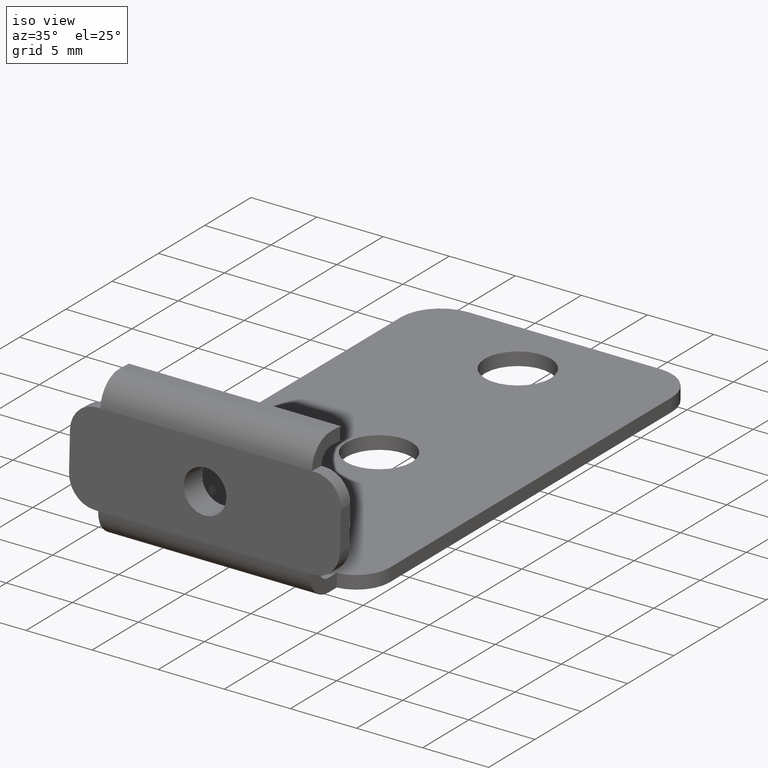
[diagram: clean part render]
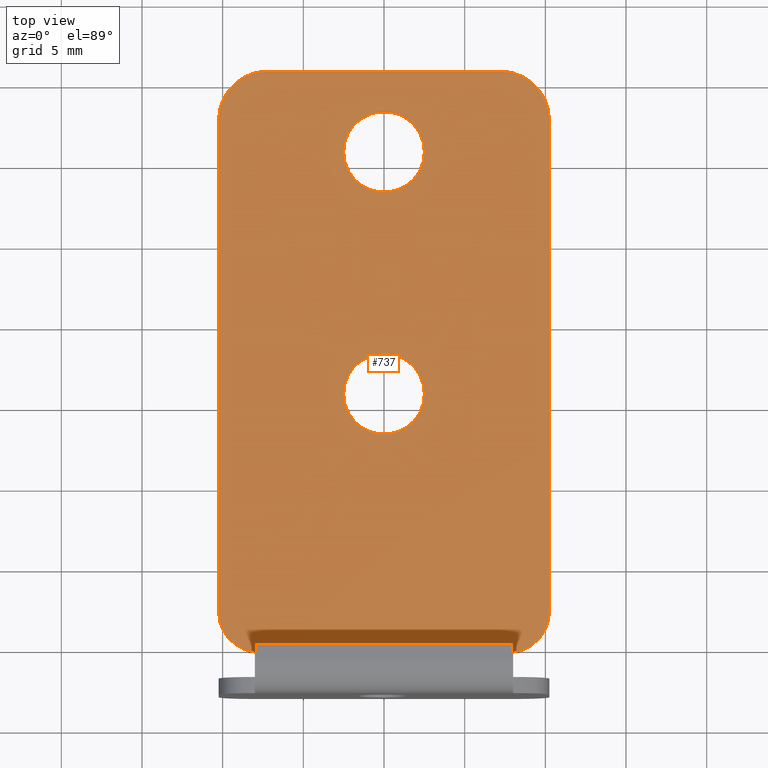
[diagram: tour spotlight — one face highlighted and labeled with its STEP entity id]
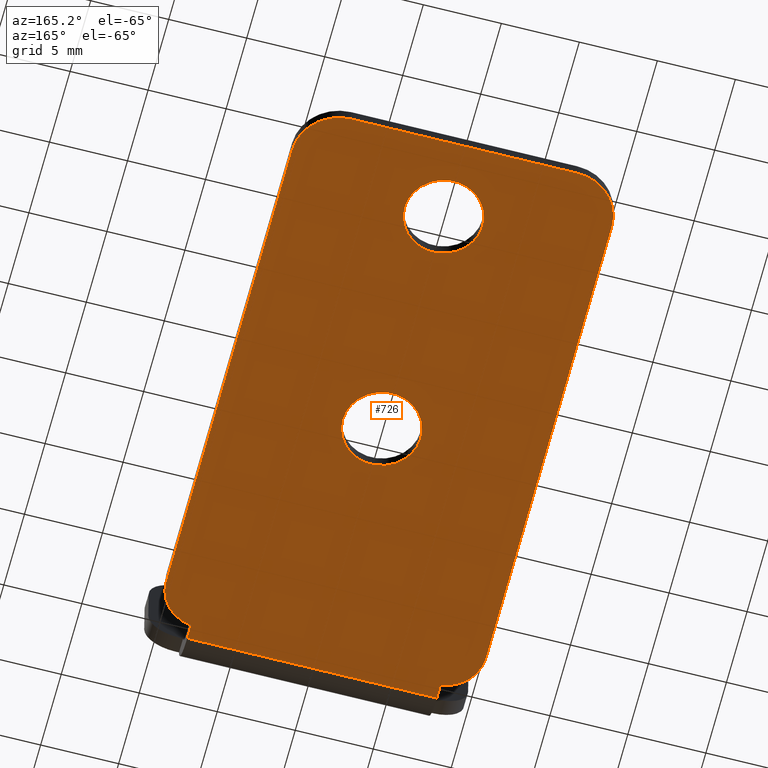
[diagram: tour spotlight — one face highlighted and labeled with its STEP entity id]
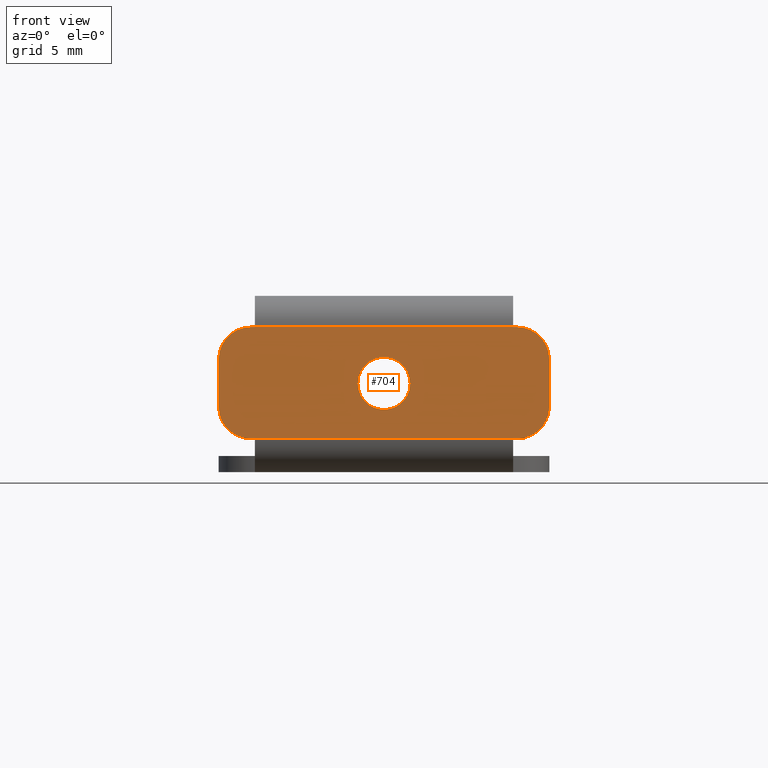
[diagram: tour spotlight — one face highlighted and labeled with its STEP entity id]
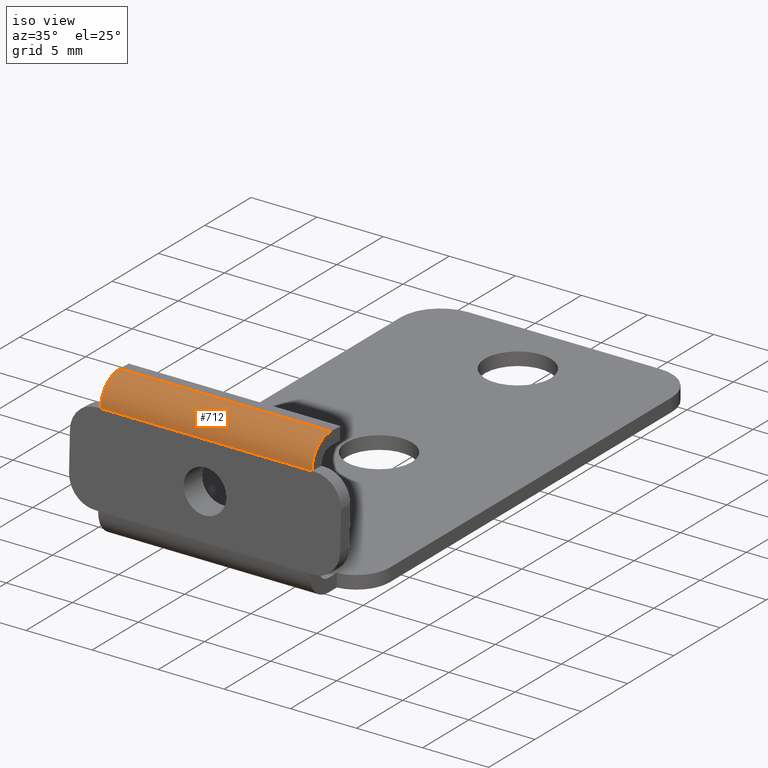
[diagram: tour spotlight — one face highlighted and labeled with its STEP entity id]
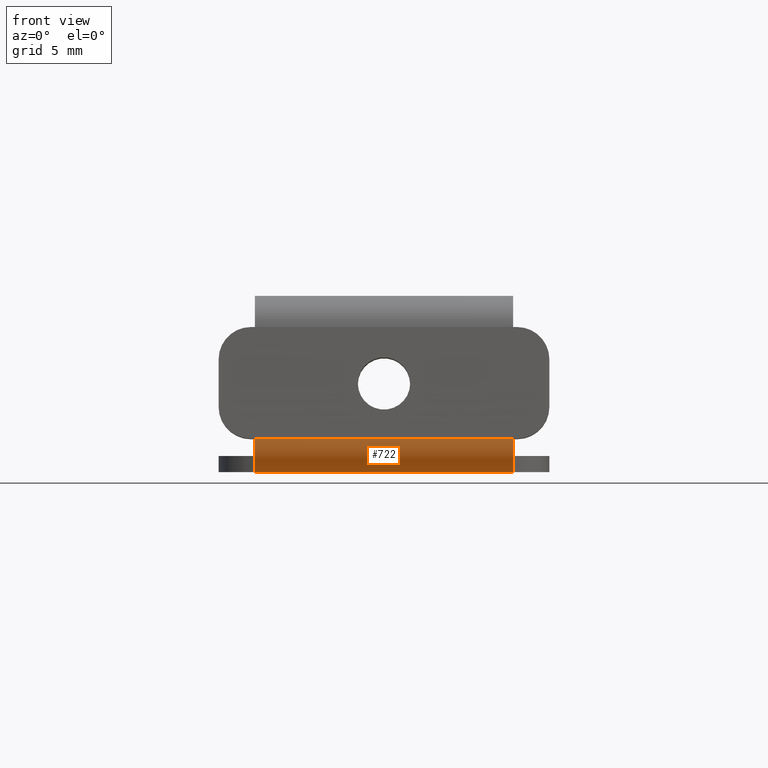
[diagram: tour spotlight — one face highlighted and labeled with its STEP entity id]
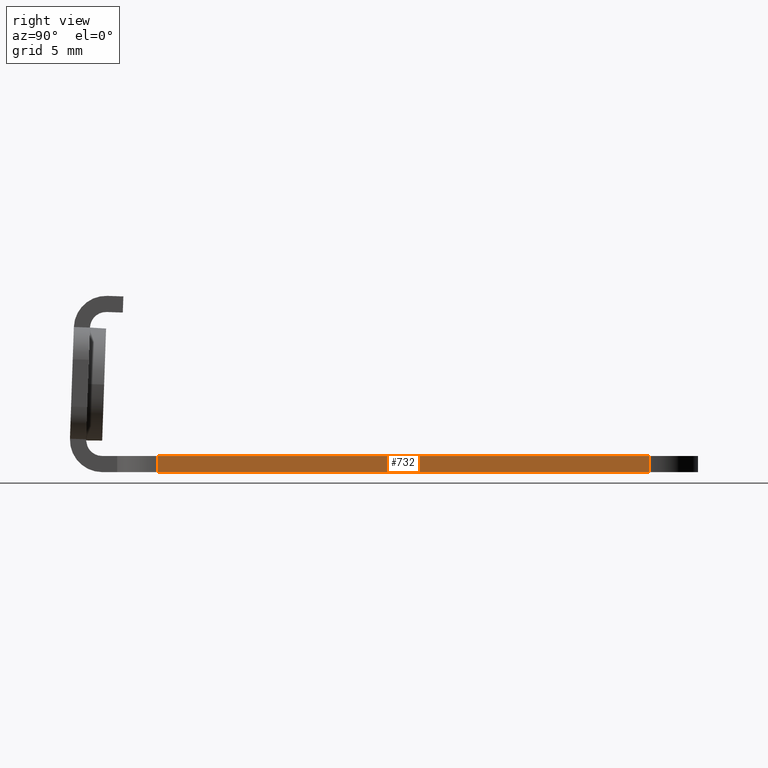
[diagram: tour spotlight — one face highlighted and labeled with its STEP entity id]
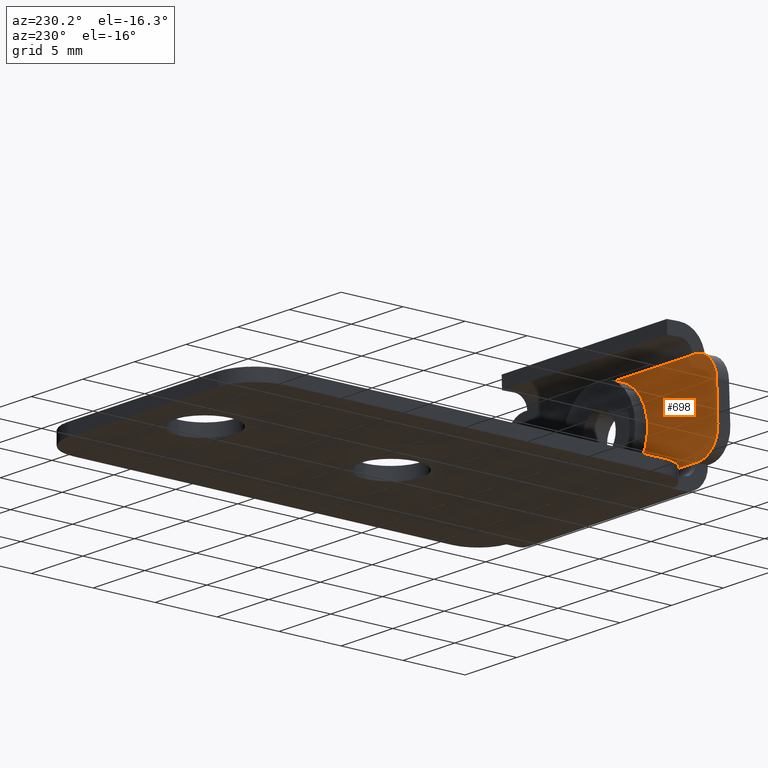
[diagram: tour spotlight — one face highlighted and labeled with its STEP entity id]
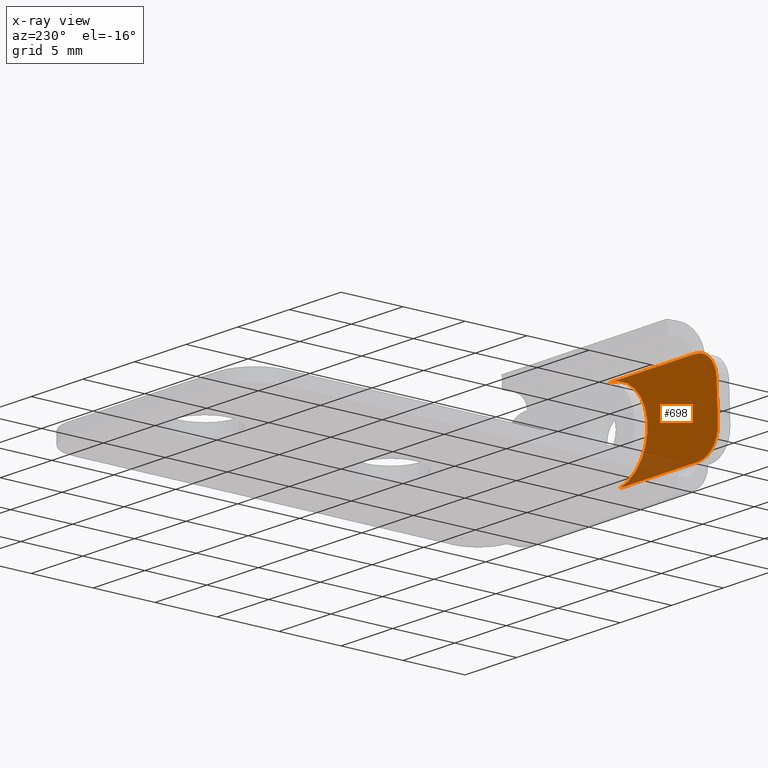
[diagram: x-ray of the same camera — body ghosted, this tour face saturated]
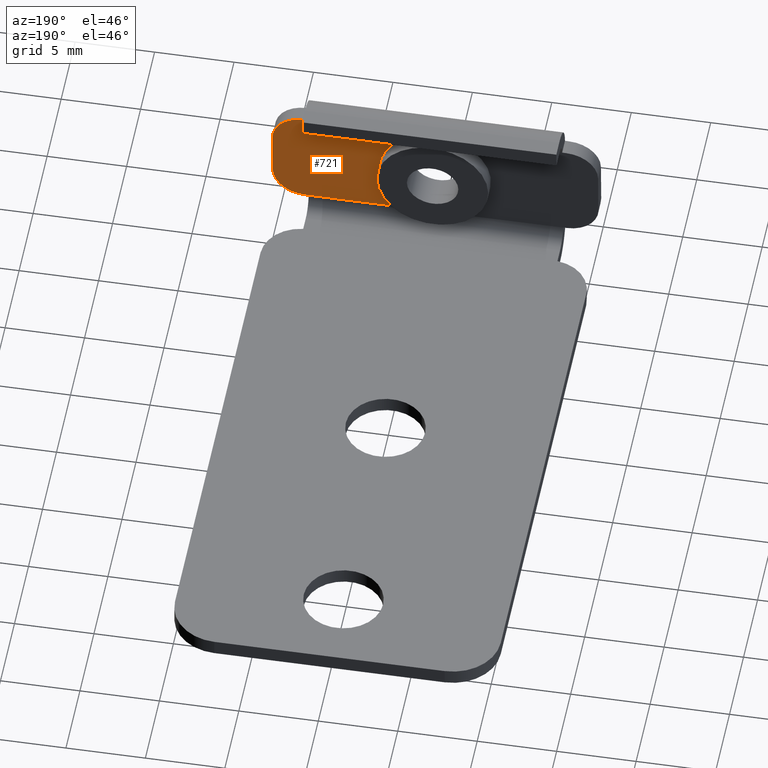
[diagram: tour spotlight — one face highlighted and labeled with its STEP entity id]
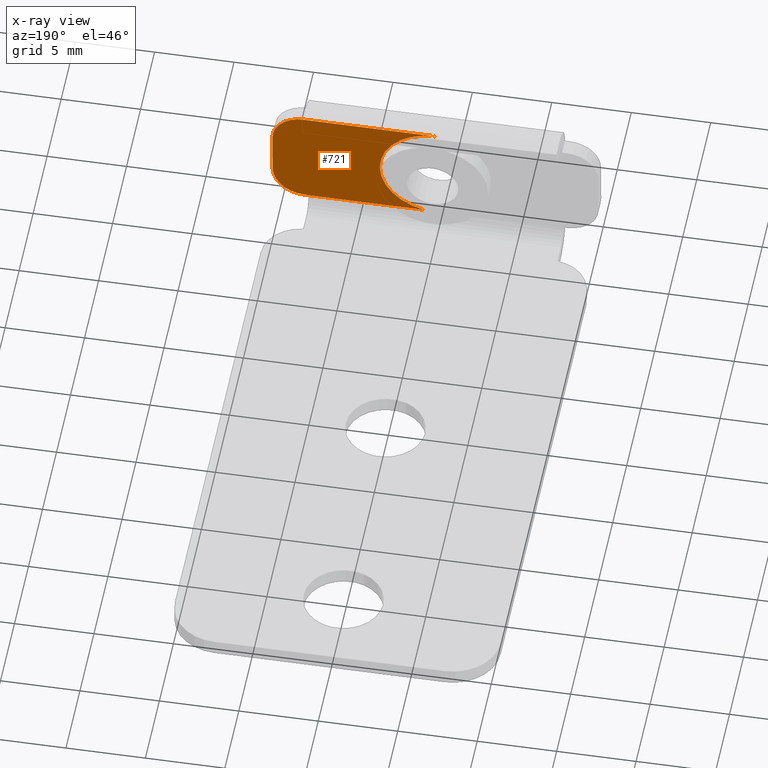
[diagram: x-ray of the same camera — body ghosted, this tour face saturated]
A machine part: a face-by-face anatomy tour. The part has 42 B-rep faces; the first image is the clean iso view, then the 8 largest visible faces are spotlighted one at a time (largest first), each with its STEP entity span.

Face 1 — top view, entity #737. In plain terms, the highlighted planar face has unit normal (0, 0, 1).
Definition (entity closure, byte-faithful):
#20=FACE_BOUND('',#136,.T.);
#21=FACE_BOUND('',#137,.T.);
#47=PLANE('',#836);
#89=FACE_OUTER_BOUND('',#135,.T.);
#135=EDGE_LOOP('',(#668,#669,#670,#671,#672,#673,#674,#675,#676,#677));
#136=EDGE_LOOP('',(#678));
#137=EDGE_LOOP('',(#679));
#169=LINE('',#1161,#237);
#188=LINE('',#1213,#256);
#195=LINE('',#1245,#263);
#200=LINE('',#1258,#268);
#203=LINE('',#1266,#271);
#205=LINE('',#1271,#273);
#237=VECTOR('',#932,10.);
#256=VECTOR('',#993,10.);
#263=VECTOR('',#1024,10.);
#268=VECTOR('',#1039,10.);
#271=VECTOR('',#1048,10.);
#273=VECTOR('',#1056,10.);
#302=CIRCLE('',#821,2.5);
#303=CIRCLE('',#823,2.5);
#304=CIRCLE('',#826,2.5);
#305=CIRCLE('',#828,2.5);
#306=CIRCLE('',#831,3.);
#307=CIRCLE('',#834,3.);
#339=VERTEX_POINT('',#1158);
#340=VERTEX_POINT('',#1160);
#352=VERTEX_POINT('',#1211);
#362=VERTEX_POINT('',#1235);
#363=VERTEX_POINT('',#1239);
#364=VERTEX_POINT('',#1243);
#365=VERTEX_POINT('',#1244);
#366=VERTEX_POINT('',#1249);
#367=VERTEX_POINT('',#1253);
#368=VERTEX_POINT('',#1257);
#369=VERTEX_POINT('',#1261);
#370=VERTEX_POINT('',#1265);
#418=EDGE_CURVE('',#340,#339,#169,.T.);
#444=EDGE_CURVE('',#352,#339,#188,.T.);
#455=EDGE_CURVE('',#362,#362,#302,.T.);
#457=EDGE_CURVE('',#363,#363,#303,.T.);
#459=EDGE_CURVE('',#364,#365,#195,.T.);
#462=EDGE_CURVE('',#365,#366,#304,.T.);
#464=EDGE_CURVE('',#352,#367,#305,.T.);
#466=EDGE_CURVE('',#367,#368,#200,.T.);
#468=EDGE_CURVE('',#368,#369,#306,.T.);
#470=EDGE_CURVE('',#369,#370,#203,.T.);
#472=EDGE_CURVE('',#370,#364,#307,.T.);
#473=EDGE_CURVE('',#340,#366,#205,.T.);
#668=ORIENTED_EDGE('',*,*,#418,.T.);
#669=ORIENTED_EDGE('',*,*,#444,.F.);
#670=ORIENTED_EDGE('',*,*,#464,.T.);
#671=ORIENTED_EDGE('',*,*,#466,.T.);
#672=ORIENTED_EDGE('',*,*,#468,.T.);
#673=ORIENTED_EDGE('',*,*,#470,.T.);
#674=ORIENTED_EDGE('',*,*,#472,.T.);
#675=ORIENTED_EDGE('',*,*,#459,.T.);
#676=ORIENTED_EDGE('',*,*,#462,.T.);
#677=ORIENTED_EDGE('',*,*,#473,.F.);
#678=ORIENTED_EDGE('',*,*,#455,.T.);
#679=ORIENTED_EDGE('',*,*,#457,.T.);
#737=ADVANCED_FACE('',(#89,#20,#21),#47,.T.);
#821=AXIS2_PLACEMENT_3D('',#1236,#1014,#1015);
#823=AXIS2_PLACEMENT_3D('',#1240,#1019,#1020);
#826=AXIS2_PLACEMENT_3D('',#1250,#1029,#1030);
#828=AXIS2_PLACEMENT_3D('',#1254,#1034,#1035);
#831=AXIS2_PLACEMENT_3D('',#1262,#1043,#1044);
#834=AXIS2_PLACEMENT_3D('',#1269,#1052,#1053);
#836=AXIS2_PLACEMENT_3D('',#1272,#1057,#1058);
#932=DIRECTION('',(1.,0.,0.));
#993=DIRECTION('',(0.,-1.,0.));
#1014=DIRECTION('center_axis',(0.,0.,-1.));
#1015=DIRECTION('ref_axis',(-1.,0.,0.));
#1019=DIRECTION('center_axis',(0.,0.,-1.));
#1020=DIRECTION('ref_axis',(-1.,0.,0.));
#1024=DIRECTION('',(0.,-1.,0.));
#1029=DIRECTION('center_axis',(0.,0.,1.));
#1030=DIRECTION('ref_axis',(-1.,1.11022302462516E-16,0.));
#1034=DIRECTION('center_axis',(0.,0.,1.));
#1035=DIRECTION('ref_axis',(0.1,-0.99498743710662,0.));
#1039=DIRECTION('',(0.,1.,0.));
#1043=DIRECTION('center_axis',(0.,0.,1.));
#1044=DIRECTION('ref_axis',(1.,0.,0.));
#1048=DIRECTION('',(-1.,0.,0.));
#1052=DIRECTION('center_axis',(0.,0.,1.));
#1053=DIRECTION('ref_axis',(0.,1.,0.));
#1056=DIRECTION('',(0.,1.,0.));
#1057=DIRECTION('center_axis',(0.,0.,1.));
#1058=DIRECTION('ref_axis',(1.,0.,0.));
#1158=CARTESIAN_POINT('',(8.,-0.928939372418861,0.));
#1160=CARTESIAN_POINT('',(-8.,-0.928939372418861,0.));
#1161=CARTESIAN_POINT('',(4.,-0.928939372418861,0.));
#1211=CARTESIAN_POINT('',(8.,4.29686022783986E-17,0.));
#1213=CARTESIAN_POINT('',(8.,4.29686022783986E-17,0.));
#1235=CARTESIAN_POINT('',(2.5,16.,0.));
#1236=CARTESIAN_POINT('Origin',(0.,16.,0.));
#1239=CARTESIAN_POINT('',(2.5,31.,0.));
#1240=CARTESIAN_POINT('Origin',(0.,31.,0.));
#1243=CARTESIAN_POINT('',(-10.25,33.,0.));
#1244=CARTESIAN_POINT('',(-10.25,2.48746859276655,0.));
#1245=CARTESIAN_POINT('',(-10.25,33.,0.));
#1249=CARTESIAN_POINT('',(-8.,4.29686022783986E-17,0.));
#1250=CARTESIAN_POINT('Origin',(-7.75,2.48746859276655,0.));
#1253=CARTESIAN_POINT('',(10.25,2.48746859276655,0.));
#1254=CARTESIAN_POINT('Origin',(7.75,2.48746859276655,0.));
#1257=CARTESIAN_POINT('',(10.25,33.,0.));
#1258=CARTESIAN_POINT('',(10.25,2.48746859276655,0.));
#1261=CARTESIAN_POINT('',(7.25,36.,0.));
#1262=CARTESIAN_POINT('Origin',(7.25,33.,0.));
#1265=CARTESIAN_POINT('',(-7.25,36.,0.));
#1266=CARTESIAN_POINT('',(7.25,36.,0.));
#1269=CARTESIAN_POINT('Origin',(-7.25,33.,0.));
#1271=CARTESIAN_POINT('',(-8.,-3.,0.));
#1272=CARTESIAN_POINT('Origin',(0.,-1.5,0.));

Face 2 — auxiliary view, entity #726. In plain terms, the highlighted planar face has unit normal (0, 0, -1).
Definition (entity closure, byte-faithful):
#18=FACE_BOUND('',#123,.T.);
#19=FACE_BOUND('',#124,.T.);
#42=PLANE('',#813);
#78=FACE_OUTER_BOUND('',#122,.T.);
#122=EDGE_LOOP('',(#616,#617,#618,#619,#620,#621,#622,#623,#624,#625));
#123=EDGE_LOOP('',(#626));
#124=EDGE_LOOP('',(#627));
#183=LINE('',#1202,#251);
#186=LINE('',#1210,#254);
#189=LINE('',#1216,#257);
#190=LINE('',#1220,#258);
#191=LINE('',#1224,#259);
#192=LINE('',#1228,#260);
#251=VECTOR('',#980,10.);
#254=VECTOR('',#991,10.);
#257=VECTOR('',#996,10.);
#258=VECTOR('',#999,10.);
#259=VECTOR('',#1002,10.);
#260=VECTOR('',#1005,10.);
#296=CIRCLE('',#814,2.5);
#297=CIRCLE('',#815,3.);
#298=CIRCLE('',#816,3.);
#299=CIRCLE('',#817,2.5);
#300=CIRCLE('',#818,2.5);
#301=CIRCLE('',#819,2.5);
#349=VERTEX_POINT('',#1199);
#350=VERTEX_POINT('',#1201);
#351=VERTEX_POINT('',#1209);
#353=VERTEX_POINT('',#1215);
#354=VERTEX_POINT('',#1217);
#355=VERTEX_POINT('',#1219);
#356=VERTEX_POINT('',#1221);
#357=VERTEX_POINT('',#1223);
#358=VERTEX_POINT('',#1225);
#359=VERTEX_POINT('',#1227);
#360=VERTEX_POINT('',#1230);
#361=VERTEX_POINT('',#1232);
#438=EDGE_CURVE('',#350,#349,#183,.T.);
#442=EDGE_CURVE('',#351,#350,#186,.T.);
#445=EDGE_CURVE('',#349,#353,#189,.T.);
#446=EDGE_CURVE('',#353,#354,#296,.T.);
#447=EDGE_CURVE('',#354,#355,#190,.T.);
#448=EDGE_CURVE('',#355,#356,#297,.T.);
#449=EDGE_CURVE('',#356,#357,#191,.T.);
#450=EDGE_CURVE('',#357,#358,#298,.T.);
#451=EDGE_CURVE('',#358,#359,#192,.T.);
#452=EDGE_CURVE('',#359,#351,#299,.T.);
#453=EDGE_CURVE('',#360,#360,#300,.T.);
#454=EDGE_CURVE('',#361,#361,#301,.T.);
#616=ORIENTED_EDGE('',*,*,#438,.T.);
#617=ORIENTED_EDGE('',*,*,#445,.T.);
#618=ORIENTED_EDGE('',*,*,#446,.T.);
#619=ORIENTED_EDGE('',*,*,#447,.T.);
#620=ORIENTED_EDGE('',*,*,#448,.T.);
#621=ORIENTED_EDGE('',*,*,#449,.T.);
#622=ORIENTED_EDGE('',*,*,#450,.T.);
#623=ORIENTED_EDGE('',*,*,#451,.T.);
#624=ORIENTED_EDGE('',*,*,#452,.T.);
#625=ORIENTED_EDGE('',*,*,#442,.T.);
#626=ORIENTED_EDGE('',*,*,#453,.T.);
#627=ORIENTED_EDGE('',*,*,#454,.T.);
#726=ADVANCED_FACE('',(#78,#18,#19),#42,.T.);
#813=AXIS2_PLACEMENT_3D('',#1214,#994,#995);
#814=AXIS2_PLACEMENT_3D('',#1218,#997,#998);
#815=AXIS2_PLACEMENT_3D('',#1222,#1000,#1001);
#816=AXIS2_PLACEMENT_3D('',#1226,#1003,#1004);
#817=AXIS2_PLACEMENT_3D('',#1229,#1006,#1007);
#818=AXIS2_PLACEMENT_3D('',#1231,#1008,#1009);
#819=AXIS2_PLACEMENT_3D('',#1233,#1010,#1011);
#980=DIRECTION('',(-1.,0.,0.));
#991=DIRECTION('',(0.,-1.,0.));
#994=DIRECTION('center_axis',(0.,0.,-1.));
#995=DIRECTION('ref_axis',(-1.,0.,0.));
#996=DIRECTION('',(0.,1.,0.));
#997=DIRECTION('center_axis',(0.,0.,-1.));
#998=DIRECTION('ref_axis',(-1.,1.11022302462516E-16,0.));
#999=DIRECTION('',(0.,1.,0.));
#1000=DIRECTION('center_axis',(0.,0.,-1.));
#1001=DIRECTION('ref_axis',(0.,1.,0.));
#1002=DIRECTION('',(1.,0.,0.));
#1003=DIRECTION('center_axis',(0.,0.,-1.));
#1004=DIRECTION('ref_axis',(1.,0.,0.));
#1005=DIRECTION('',(0.,-1.,0.));
#1006=DIRECTION('center_axis',(0.,0.,-1.));
#1007=DIRECTION('ref_axis',(0.1,-0.99498743710662,0.));
#1008=DIRECTION('center_axis',(0.,0.,1.));
#1009=DIRECTION('ref_axis',(-1.,0.,0.));
#1010=DIRECTION('center_axis',(0.,0.,1.));
#1011=DIRECTION('ref_axis',(-1.,0.,0.));
#1199=CARTESIAN_POINT('',(-8.,-0.928939372418861,-1.));
#1201=CARTESIAN_POINT('',(8.,-0.928939372418861,-1.));
#1202=CARTESIAN_POINT('',(4.,-0.928939372418861,-1.));
#1209=CARTESIAN_POINT('',(8.,4.29686022783986E-17,-1.));
#1210=CARTESIAN_POINT('',(8.,4.29686022783986E-17,-1.));
#1214=CARTESIAN_POINT('Origin',(0.,-1.5,-1.));
#1215=CARTESIAN_POINT('',(-8.,4.29686022783986E-17,-1.));
#1216=CARTESIAN_POINT('',(-8.,-3.,-1.));
#1217=CARTESIAN_POINT('',(-10.25,2.48746859276655,-1.));
#1218=CARTESIAN_POINT('Origin',(-7.75,2.48746859276655,-1.));
#1219=CARTESIAN_POINT('',(-10.25,33.,-1.));
#1220=CARTESIAN_POINT('',(-10.25,33.,-1.));
#1221=CARTESIAN_POINT('',(-7.25,36.,-1.));
#1222=CARTESIAN_POINT('Origin',(-7.25,33.,-1.));
#1223=CARTESIAN_POINT('',(7.25,36.,-1.));
#1224=CARTESIAN_POINT('',(7.25,36.,-1.));
#1225=CARTESIAN_POINT('',(10.25,33.,-1.));
#1226=CARTESIAN_POINT('Origin',(7.25,33.,-1.));
#1227=CARTESIAN_POINT('',(10.25,2.48746859276655,-1.));
#1228=CARTESIAN_POINT('',(10.25,2.48746859276655,-1.));
#1229=CARTESIAN_POINT('Origin',(7.75,2.48746859276655,-1.));
#1230=CARTESIAN_POINT('',(2.5,31.,-1.));
#1231=CARTESIAN_POINT('Origin',(0.,31.,-1.));
#1232=CARTESIAN_POINT('',(2.5,16.,-1.));
#1233=CARTESIAN_POINT('Origin',(0.,16.,-1.));

Face 3 — front view, entity #704. In plain terms, the highlighted planar face has unit normal (-0, 0.9994, -0.0349).
Definition (entity closure, byte-faithful):
#16=FACE_BOUND('',#99,.T.);
#27=PLANE('',#776);
#56=FACE_OUTER_BOUND('',#98,.T.);
#98=EDGE_LOOP('',(#510,#511,#512,#513,#514,#515,#516,#517,#518,#519,#520,
#521));
#99=EDGE_LOOP('',(#522));
#142=LINE('',#1074,#210);
#149=LINE('',#1095,#217);
#151=LINE('',#1098,#219);
#154=LINE('',#1110,#222);
#157=LINE('',#1115,#225);
#158=LINE('',#1117,#226);
#159=LINE('',#1121,#227);
#160=LINE('',#1122,#228);
#210=VECTOR('',#851,10.);
#217=VECTOR('',#870,10.);
#219=VECTOR('',#874,10.);
#222=VECTOR('',#885,10.);
#225=VECTOR('',#890,10.);
#226=VECTOR('',#891,10.);
#227=VECTOR('',#894,10.);
#228=VECTOR('',#895,10.);
#275=CIRCLE('',#763,2.);
#278=CIRCLE('',#769,2.);
#280=CIRCLE('',#774,2.);
#281=CIRCLE('',#777,2.);
#282=CIRCLE('',#778,1.621);
#310=VERTEX_POINT('',#1064);
#311=VERTEX_POINT('',#1066);
#313=VERTEX_POINT('',#1072);
#319=VERTEX_POINT('',#1088);
#320=VERTEX_POINT('',#1090);
#321=VERTEX_POINT('',#1094);
#324=VERTEX_POINT('',#1103);
#325=VERTEX_POINT('',#1105);
#326=VERTEX_POINT('',#1109);
#328=VERTEX_POINT('',#1116);
#329=VERTEX_POINT('',#1118);
#330=VERTEX_POINT('',#1120);
#331=VERTEX_POINT('',#1123);
#373=EDGE_CURVE('',#310,#311,#275,.T.);
#377=EDGE_CURVE('',#310,#313,#142,.T.);
#385=EDGE_CURVE('',#319,#320,#278,.T.);
#387=EDGE_CURVE('',#321,#320,#149,.T.);
#389=EDGE_CURVE('',#319,#311,#151,.T.);
#392=EDGE_CURVE('',#324,#325,#280,.T.);
#394=EDGE_CURVE('',#325,#326,#154,.T.);
#397=EDGE_CURVE('',#313,#326,#157,.T.);
#398=EDGE_CURVE('',#328,#324,#158,.T.);
#399=EDGE_CURVE('',#329,#328,#281,.T.);
#400=EDGE_CURVE('',#330,#329,#159,.T.);
#401=EDGE_CURVE('',#330,#321,#160,.T.);
#402=EDGE_CURVE('',#331,#331,#282,.T.);
#510=ORIENTED_EDGE('',*,*,#373,.F.);
#511=ORIENTED_EDGE('',*,*,#377,.T.);
#512=ORIENTED_EDGE('',*,*,#397,.T.);
#513=ORIENTED_EDGE('',*,*,#394,.F.);
#514=ORIENTED_EDGE('',*,*,#392,.F.);
#515=ORIENTED_EDGE('',*,*,#398,.F.);
#516=ORIENTED_EDGE('',*,*,#399,.F.);
#517=ORIENTED_EDGE('',*,*,#400,.F.);
#518=ORIENTED_EDGE('',*,*,#401,.T.);
#519=ORIENTED_EDGE('',*,*,#387,.T.);
#520=ORIENTED_EDGE('',*,*,#385,.F.);
#521=ORIENTED_EDGE('',*,*,#389,.T.);
#522=ORIENTED_EDGE('',*,*,#402,.T.);
#704=ADVANCED_FACE('',(#56,#16),#27,.F.);
#763=AXIS2_PLACEMENT_3D('',#1067,#844,#845);
#769=AXIS2_PLACEMENT_3D('',#1091,#865,#866);
#774=AXIS2_PLACEMENT_3D('',#1106,#880,#881);
#776=AXIS2_PLACEMENT_3D('',#1114,#888,#889);
#777=AXIS2_PLACEMENT_3D('',#1119,#892,#893);
#778=AXIS2_PLACEMENT_3D('',#1124,#896,#897);
#844=DIRECTION('center_axis',(-1.27964073796983E-19,0.999390827019096,-0.0348994967025009));
#845=DIRECTION('ref_axis',(-0.707106781186547,-0.0246776707783362,-0.706676030840835));
#851=DIRECTION('',(1.,-4.51211854988796E-18,-1.25543524387553E-16));
#865=DIRECTION('center_axis',(-1.27964073796983E-19,0.999390827019096,-0.0348994967025009));
#866=DIRECTION('ref_axis',(-0.707106781186548,0.0246776707783358,0.706676030840835));
#870=DIRECTION('',(-1.,1.27886121540699E-19,-4.4658817715164E-21));
#874=DIRECTION('',(0.,-0.0348994967025009,-0.999390827019096));
#880=DIRECTION('center_axis',(-1.27964073796983E-19,0.999390827019096,-0.0348994967025009));
#881=DIRECTION('ref_axis',(0.707106781186547,-0.0246776707783362,-0.706676030840835));
#885=DIRECTION('',(-1.,-4.51211854988796E-18,-1.25543524387553E-16));
#888=DIRECTION('center_axis',(-1.27964073796983E-19,0.999390827019096,-0.0348994967025009));
#889=DIRECTION('ref_axis',(1.,1.27886121540699E-19,-4.4658817715164E-21));
#890=DIRECTION('',(1.,1.27886121540699E-19,-4.4658817715164E-21));
#891=DIRECTION('',(0.,-0.0348994967025009,-0.999390827019096));
#892=DIRECTION('center_axis',(-1.27964073796983E-19,0.999390827019096,-0.0348994967025009));
#893=DIRECTION('ref_axis',(0.707106781186547,0.0246776707783358,0.706676030840835));
#894=DIRECTION('',(1.,1.27886121540699E-19,-4.4658817715164E-21));
#895=DIRECTION('',(-1.,-1.27886121540699E-19,4.46588177151636E-21));
#896=DIRECTION('center_axis',(-1.27964073796983E-19,0.999390827019096,-0.0348994967025009));
#897=DIRECTION('ref_axis',(-1.,1.2804207356862E-19,0.));
#1064=CARTESIAN_POINT('',(-8.25,-2.92772102645705,1.069798993405));
#1066=CARTESIAN_POINT('',(-10.25,-2.85792203305205,3.06858064744319));
#1067=CARTESIAN_POINT('Origin',(-8.25,-2.85792203305205,3.06858064744319));
#1072=CARTESIAN_POINT('',(-8.,-2.92772102645705,1.069798993405));
#1074=CARTESIAN_POINT('',(-10.25,-2.92772102645705,1.069798993405));
#1088=CARTESIAN_POINT('',(-10.25,-2.75570352308249,5.99573578913367));
#1090=CARTESIAN_POINT('',(-8.25,-2.68590452967749,7.99451744317186));
#1091=CARTESIAN_POINT('Origin',(-8.25,-2.75570352308249,5.99573578913367));
#1094=CARTESIAN_POINT('',(-8.,-2.68590452967749,7.99451744317186));
#1095=CARTESIAN_POINT('',(-8.,-2.68590452967749,7.99451744317186));
#1098=CARTESIAN_POINT('',(-10.25,-2.68590452967749,7.99451744317186));
#1103=CARTESIAN_POINT('',(10.25,-2.85792203305205,3.06858064744319));
#1105=CARTESIAN_POINT('',(8.25,-2.92772102645705,1.069798993405));
#1106=CARTESIAN_POINT('Origin',(8.25,-2.85792203305205,3.06858064744319));
#1109=CARTESIAN_POINT('',(8.,-2.92772102645705,1.069798993405));
#1110=CARTESIAN_POINT('',(10.25,-2.92772102645705,1.069798993405));
#1114=CARTESIAN_POINT('Origin',(0.,-2.81226080226805,4.37614721738354));
#1115=CARTESIAN_POINT('',(3.58299406631552E-20,-2.92772102645705,1.069798993405));
#1116=CARTESIAN_POINT('',(10.25,-2.75570352308249,5.99573578913367));
#1117=CARTESIAN_POINT('',(10.25,-2.68590452967749,7.99451744317186));
#1118=CARTESIAN_POINT('',(8.25,-2.68590452967749,7.99451744317186));
#1119=CARTESIAN_POINT('Origin',(8.25,-2.75570352308249,5.99573578913367));
#1120=CARTESIAN_POINT('',(8.,-2.68590452967749,7.99451744317186));
#1121=CARTESIAN_POINT('',(8.,-2.68590452967749,7.99451744317186));
#1122=CARTESIAN_POINT('',(4.,-2.68590452967749,7.99451744317186));
#1123=CARTESIAN_POINT('',(1.621,-2.80805276813624,4.49664954860503));
#1124=CARTESIAN_POINT('Origin',(-2.55928147593966E-19,-2.80805276813624,
4.49664954860503));

Face 4 — iso view, entity #712. In plain terms, the highlighted cylindrical surface (edge-blend (fillet) strip) has radius 2 mm, axis along (-1, 0, -0).
Definition (entity closure, byte-faithful):
#64=FACE_OUTER_BOUND('',#108,.T.);
#108=EDGE_LOOP('',(#554,#555,#556,#557));
#160=LINE('',#1122,#228);
#170=LINE('',#1166,#238);
#228=VECTOR('',#895,10.);
#238=VECTOR('',#937,10.);
#290=CIRCLE('',#794,2.);
#291=CIRCLE('',#795,2.);
#321=VERTEX_POINT('',#1094);
#330=VERTEX_POINT('',#1120);
#341=VERTEX_POINT('',#1164);
#342=VERTEX_POINT('',#1165);
#401=EDGE_CURVE('',#330,#321,#160,.T.);
#420=EDGE_CURVE('',#341,#342,#170,.T.);
#421=EDGE_CURVE('',#321,#341,#290,.T.);
#422=EDGE_CURVE('',#342,#330,#291,.T.);
#554=ORIENTED_EDGE('',*,*,#420,.F.);
#555=ORIENTED_EDGE('',*,*,#421,.F.);
#556=ORIENTED_EDGE('',*,*,#401,.F.);
#557=ORIENTED_EDGE('',*,*,#422,.F.);
#687=CYLINDRICAL_SURFACE('',#793,2.);
#712=ADVANCED_FACE('',(#64),#687,.T.);
#793=AXIS2_PLACEMENT_3D('',#1163,#935,#936);
#794=AXIS2_PLACEMENT_3D('',#1167,#938,#939);
#795=AXIS2_PLACEMENT_3D('',#1168,#940,#941);
#895=DIRECTION('',(-1.,-1.27886121540699E-19,4.46588177151636E-21));
#935=DIRECTION('center_axis',(-1.,1.278861215407E-19,-4.46588177151641E-21));
#936=DIRECTION('ref_axis',(-1.27964073796983E-19,-0.999390827019096,0.0348994967025009));
#937=DIRECTION('',(1.,-9.76250363060957E-20,8.71029983165538E-19));
#938=DIRECTION('center_axis',(-1.,1.278861215407E-19,-4.46588177151641E-21));
#939=DIRECTION('ref_axis',(0.,-0.999390827019096,0.0348994967025007));
#940=DIRECTION('center_axis',(1.,-1.278861215407E-19,4.46588177151641E-21));
#941=DIRECTION('ref_axis',(0.,0.0348994967025009,0.999390827019096));
#1094=CARTESIAN_POINT('',(-8.,-2.68590452967749,7.99451744317186));
#1120=CARTESIAN_POINT('',(8.,-2.68590452967749,7.99451744317186));
#1122=CARTESIAN_POINT('',(4.,-2.68590452967749,7.99451744317186));
#1163=CARTESIAN_POINT('Origin',(1.84268266267656E-19,-0.6871228756393,7.92471844976686));
#1164=CARTESIAN_POINT('',(-8.,-0.617323882234297,9.92350010380505));
#1165=CARTESIAN_POINT('',(8.,-0.617323882234297,9.92350010380505));
#1166=CARTESIAN_POINT('',(-1.21453330958414E-16,-0.617323882234297,9.92350010380505));
#1167=CARTESIAN_POINT('Origin',(-8.,-0.6871228756393,7.92471844976686));
#1168=CARTESIAN_POINT('Origin',(8.,-0.6871228756393,7.92471844976686));

Face 5 — front view, entity #722. In plain terms, the highlighted cylindrical surface (edge-blend (fillet) strip) has radius 2 mm, axis along (-1, 0, 0).
Definition (entity closure, byte-faithful):
#74=FACE_OUTER_BOUND('',#118,.T.);
#118=EDGE_LOOP('',(#600,#601,#602,#603));
#157=LINE('',#1115,#225);
#183=LINE('',#1202,#251);
#225=VECTOR('',#890,10.);
#251=VECTOR('',#980,10.);
#294=CIRCLE('',#808,2.);
#295=CIRCLE('',#809,2.);
#313=VERTEX_POINT('',#1072);
#326=VERTEX_POINT('',#1109);
#349=VERTEX_POINT('',#1199);
#350=VERTEX_POINT('',#1201);
#397=EDGE_CURVE('',#313,#326,#157,.T.);
#437=EDGE_CURVE('',#349,#313,#294,.T.);
#438=EDGE_CURVE('',#350,#349,#183,.T.);
#439=EDGE_CURVE('',#326,#350,#295,.T.);
#600=ORIENTED_EDGE('',*,*,#397,.F.);
#601=ORIENTED_EDGE('',*,*,#437,.F.);
#602=ORIENTED_EDGE('',*,*,#438,.F.);
#603=ORIENTED_EDGE('',*,*,#439,.F.);
#689=CYLINDRICAL_SURFACE('',#807,2.);
#722=ADVANCED_FACE('',(#74),#689,.T.);
#807=AXIS2_PLACEMENT_3D('',#1198,#976,#977);
#808=AXIS2_PLACEMENT_3D('',#1200,#978,#979);
#809=AXIS2_PLACEMENT_3D('',#1203,#981,#982);
#890=DIRECTION('',(1.,1.27886121540699E-19,-4.4658817715164E-21));
#976=DIRECTION('center_axis',(-1.,0.,0.));
#977=DIRECTION('ref_axis',(0.,0.,-1.));
#978=DIRECTION('center_axis',(-1.,0.,0.));
#979=DIRECTION('ref_axis',(0.,2.08166817117217E-16,-1.));
#980=DIRECTION('',(-1.,0.,0.));
#981=DIRECTION('center_axis',(1.,0.,0.));
#982=DIRECTION('ref_axis',(0.,-0.999390827019096,0.034899496702501));
#1072=CARTESIAN_POINT('',(-8.,-2.92772102645705,1.069798993405));
#1109=CARTESIAN_POINT('',(8.,-2.92772102645705,1.069798993405));
#1115=CARTESIAN_POINT('',(3.58299406631552E-20,-2.92772102645705,1.069798993405));
#1198=CARTESIAN_POINT('Origin',(0.,-0.928939372418861,1.));
#1199=CARTESIAN_POINT('',(-8.,-0.928939372418861,-1.));
#1200=CARTESIAN_POINT('Origin',(-8.,-0.928939372418861,1.));
#1201=CARTESIAN_POINT('',(8.,-0.928939372418861,-1.));
#1202=CARTESIAN_POINT('',(4.,-0.928939372418861,-1.));
#1203=CARTESIAN_POINT('Origin',(8.,-0.928939372418861,1.));

Face 6 — right view, entity #732. In plain terms, the highlighted planar face has unit normal (1, 0, 0).
Definition (entity closure, byte-faithful):
#44=PLANE('',#829);
#84=FACE_OUTER_BOUND('',#130,.T.);
#130=EDGE_LOOP('',(#648,#649,#650,#651));
#192=LINE('',#1228,#260);
#199=LINE('',#1255,#267);
#200=LINE('',#1258,#268);
#201=LINE('',#1259,#269);
#260=VECTOR('',#1005,10.);
#267=VECTOR('',#1036,10.);
#268=VECTOR('',#1039,10.);
#269=VECTOR('',#1040,10.);
#358=VERTEX_POINT('',#1225);
#359=VERTEX_POINT('',#1227);
#367=VERTEX_POINT('',#1253);
#368=VERTEX_POINT('',#1257);
#451=EDGE_CURVE('',#358,#359,#192,.T.);
#465=EDGE_CURVE('',#367,#359,#199,.T.);
#466=EDGE_CURVE('',#367,#368,#200,.T.);
#467=EDGE_CURVE('',#368,#358,#201,.T.);
#648=ORIENTED_EDGE('',*,*,#466,.F.);
#649=ORIENTED_EDGE('',*,*,#465,.T.);
#650=ORIENTED_EDGE('',*,*,#451,.F.);
#651=ORIENTED_EDGE('',*,*,#467,.F.);
#732=ADVANCED_FACE('',(#84),#44,.T.);
#829=AXIS2_PLACEMENT_3D('',#1256,#1037,#1038);
#1005=DIRECTION('',(0.,-1.,0.));
#1036=DIRECTION('',(0.,0.,-1.));
#1037=DIRECTION('center_axis',(1.,0.,0.));
#1038=DIRECTION('ref_axis',(0.,-1.,0.));
#1039=DIRECTION('',(0.,1.,0.));
#1040=DIRECTION('',(0.,0.,-1.));
#1225=CARTESIAN_POINT('',(10.25,33.,-1.));
#1227=CARTESIAN_POINT('',(10.25,2.48746859276655,-1.));
#1228=CARTESIAN_POINT('',(10.25,2.48746859276655,-1.));
#1253=CARTESIAN_POINT('',(10.25,2.48746859276655,0.));
#1255=CARTESIAN_POINT('',(10.25,2.48746859276655,0.));
#1256=CARTESIAN_POINT('Origin',(10.25,33.,0.));
#1257=CARTESIAN_POINT('',(10.25,33.,0.));
#1258=CARTESIAN_POINT('',(10.25,2.48746859276655,0.));
#1259=CARTESIAN_POINT('',(10.25,33.,0.));

Face 7 — auxiliary view, entity #698. An x-ray twin of the same camera follows (body ghosted, this face saturated) — the face is partly hidden behind the body. In plain terms, the highlighted planar face has unit normal (0, 0.9994, -0.0349).
Definition (entity closure, byte-faithful):
#23=PLANE('',#765);
#50=FACE_OUTER_BOUND('',#92,.T.);
#92=EDGE_LOOP('',(#482,#483,#484,#485,#486,#487,#488,#489));
#140=LINE('',#1071,#208);
#143=LINE('',#1077,#211);
#144=LINE('',#1081,#212);
#145=LINE('',#1083,#213);
#146=LINE('',#1086,#214);
#208=VECTOR('',#849,10.);
#211=VECTOR('',#854,10.);
#212=VECTOR('',#857,10.);
#213=VECTOR('',#858,10.);
#214=VECTOR('',#861,10.);
#274=CIRCLE('',#762,2.);
#276=CIRCLE('',#766,2.);
#277=CIRCLE('',#767,3.5);
#308=VERTEX_POINT('',#1061);
#309=VERTEX_POINT('',#1062);
#312=VERTEX_POINT('',#1070);
#314=VERTEX_POINT('',#1076);
#315=VERTEX_POINT('',#1078);
#316=VERTEX_POINT('',#1080);
#317=VERTEX_POINT('',#1082);
#318=VERTEX_POINT('',#1084);
#371=EDGE_CURVE('',#308,#309,#274,.T.);
#375=EDGE_CURVE('',#312,#309,#140,.T.);
#378=EDGE_CURVE('',#308,#314,#143,.T.);
#379=EDGE_CURVE('',#315,#314,#276,.T.);
#380=EDGE_CURVE('',#315,#316,#144,.T.);
#381=EDGE_CURVE('',#316,#317,#145,.T.);
#382=EDGE_CURVE('',#317,#318,#277,.T.);
#383=EDGE_CURVE('',#318,#312,#146,.T.);
#482=ORIENTED_EDGE('',*,*,#371,.F.);
#483=ORIENTED_EDGE('',*,*,#378,.T.);
#484=ORIENTED_EDGE('',*,*,#379,.F.);
#485=ORIENTED_EDGE('',*,*,#380,.T.);
#486=ORIENTED_EDGE('',*,*,#381,.T.);
#487=ORIENTED_EDGE('',*,*,#382,.T.);
#488=ORIENTED_EDGE('',*,*,#383,.T.);
#489=ORIENTED_EDGE('',*,*,#375,.T.);
#698=ADVANCED_FACE('',(#50),#23,.T.);
#762=AXIS2_PLACEMENT_3D('',#1063,#841,#842);
#765=AXIS2_PLACEMENT_3D('',#1075,#852,#853);
#766=AXIS2_PLACEMENT_3D('',#1079,#855,#856);
#767=AXIS2_PLACEMENT_3D('',#1085,#859,#860);
#841=DIRECTION('center_axis',(-1.27964073796983E-19,-0.999390827019096,
0.0348994967025009));
#842=DIRECTION('ref_axis',(-0.707106781186547,-0.0246776707783362,-0.706676030840835));
#849=DIRECTION('',(-1.,4.25634630680656E-18,1.25552456151096E-16));
#852=DIRECTION('center_axis',(1.27964073796983E-19,0.999390827019096,-0.0348994967025009));
#853=DIRECTION('ref_axis',(1.,-1.278861215407E-19,4.46588177151641E-21));
#854=DIRECTION('',(0.,0.0348994967025009,0.999390827019096));
#855=DIRECTION('center_axis',(-1.27964073796983E-19,-0.999390827019096,
0.0348994967025009));
#856=DIRECTION('ref_axis',(-0.707106781186548,0.0246776707783358,0.706676030840835));
#857=DIRECTION('',(1.,1.278861215407E-19,-4.4658817715164E-21));
#858=DIRECTION('',(1.,-1.278861215407E-19,4.46588177151637E-21));
#859=DIRECTION('center_axis',(-1.27964073796983E-19,-0.999390827019096,
0.0348994967025009));
#860=DIRECTION('ref_axis',(-1.,-1.7195803074886E-35,-3.11673930732309E-35));
#861=DIRECTION('',(-1.,1.278861215407E-19,-4.46588177151641E-21));
#1061=CARTESIAN_POINT('',(-10.25,-1.85853120603296,3.03368115074069));
#1062=CARTESIAN_POINT('',(-8.25,-1.92833019943796,1.0348994967025));
#1063=CARTESIAN_POINT('Origin',(-8.25,-1.85853120603296,3.03368115074069));
#1070=CARTESIAN_POINT('',(-8.,-1.92833019943796,1.0348994967025));
#1071=CARTESIAN_POINT('',(-9.6875,-1.92833019943796,1.0348994967025));
#1075=CARTESIAN_POINT('Origin',(0.,-1.81286997524895,4.34124772068104));
#1076=CARTESIAN_POINT('',(-10.25,-1.7563126960634,5.96083629243117));
#1077=CARTESIAN_POINT('',(-10.25,-1.74696782685329,6.22843833402765));
#1078=CARTESIAN_POINT('',(-8.25,-1.6865137026584,7.95961794646936));
#1079=CARTESIAN_POINT('Origin',(-8.25,-1.7563126960634,5.96083629243117));
#1080=CARTESIAN_POINT('',(-8.,-1.6865137026584,7.95961794646936));
#1081=CARTESIAN_POINT('',(-8.5625,-1.6865137026584,7.95961794646936));
#1082=CARTESIAN_POINT('',(-1.88079096131566E-36,-1.6865137026584,7.95961794646936));
#1083=CARTESIAN_POINT('',(4.,-1.6865137026584,7.95961794646936));
#1084=CARTESIAN_POINT('',(-0.701694221349839,-1.92833019943796,1.0348994967025));
#1085=CARTESIAN_POINT('Origin',(0.,-1.80866194111715,4.46175005190252));
#1086=CARTESIAN_POINT('',(2.81520962353363E-20,-1.92833019943796,1.0348994967025));

Face 8 — auxiliary view, entity #721. An x-ray twin of the same camera follows (body ghosted, this face saturated) — the face is partly hidden behind the body. In plain terms, the highlighted planar face has unit normal (0, 0.9994, -0.0349).
Definition (entity closure, byte-faithful):
#38=PLANE('',#806);
#73=FACE_OUTER_BOUND('',#117,.T.);
#117=EDGE_LOOP('',(#591,#592,#593,#594,#595,#596,#597,#598,#599));
#156=LINE('',#1113,#224);
#163=LINE('',#1133,#231);
#165=LINE('',#1136,#233);
#168=LINE('',#1157,#236);
#182=LINE('',#1196,#250);
#224=VECTOR('',#887,10.);
#231=VECTOR('',#906,10.);
#233=VECTOR('',#910,10.);
#236=VECTOR('',#929,10.);
#250=VECTOR('',#973,10.);
#279=CIRCLE('',#773,2.);
#283=CIRCLE('',#780,2.);
#286=CIRCLE('',#787,3.5);
#287=CIRCLE('',#788,3.5);
#317=VERTEX_POINT('',#1082);
#322=VERTEX_POINT('',#1100);
#323=VERTEX_POINT('',#1101);
#327=VERTEX_POINT('',#1111);
#332=VERTEX_POINT('',#1126);
#333=VERTEX_POINT('',#1127);
#334=VERTEX_POINT('',#1132);
#337=VERTEX_POINT('',#1144);
#338=VERTEX_POINT('',#1146);
#390=EDGE_CURVE('',#322,#323,#279,.T.);
#396=EDGE_CURVE('',#327,#322,#156,.T.);
#403=EDGE_CURVE('',#332,#333,#283,.T.);
#406=EDGE_CURVE('',#333,#334,#163,.T.);
#408=EDGE_CURVE('',#323,#332,#165,.T.);
#413=EDGE_CURVE('',#338,#337,#286,.T.);
#415=EDGE_CURVE('',#337,#317,#287,.T.);
#416=EDGE_CURVE('',#327,#338,#168,.T.);
#436=EDGE_CURVE('',#317,#334,#182,.T.);
#591=ORIENTED_EDGE('',*,*,#390,.F.);
#592=ORIENTED_EDGE('',*,*,#396,.F.);
#593=ORIENTED_EDGE('',*,*,#416,.T.);
#594=ORIENTED_EDGE('',*,*,#413,.T.);
#595=ORIENTED_EDGE('',*,*,#415,.T.);
#596=ORIENTED_EDGE('',*,*,#436,.T.);
#597=ORIENTED_EDGE('',*,*,#406,.F.);
#598=ORIENTED_EDGE('',*,*,#403,.F.);
#599=ORIENTED_EDGE('',*,*,#408,.F.);
#721=ADVANCED_FACE('',(#73),#38,.T.);
#773=AXIS2_PLACEMENT_3D('',#1102,#877,#878);
#780=AXIS2_PLACEMENT_3D('',#1128,#900,#901);
#787=AXIS2_PLACEMENT_3D('',#1147,#921,#922);
#788=AXIS2_PLACEMENT_3D('',#1154,#923,#924);
#806=AXIS2_PLACEMENT_3D('',#1197,#974,#975);
#877=DIRECTION('center_axis',(-1.27964073796983E-19,-0.999390827019096,
0.0348994967025009));
#878=DIRECTION('ref_axis',(0.707106781186547,-0.0246776707783362,-0.706676030840835));
#887=DIRECTION('',(1.,4.25634630680656E-18,1.25552456151096E-16));
#900=DIRECTION('center_axis',(-1.27964073796983E-19,-0.999390827019096,
0.0348994967025009));
#901=DIRECTION('ref_axis',(0.707106781186547,0.0246776707783358,0.706676030840835));
#906=DIRECTION('',(-1.,1.278861215407E-19,-4.4658817715164E-21));
#910=DIRECTION('',(0.,0.0348994967025009,0.999390827019096));
#921=DIRECTION('center_axis',(-1.27964073796983E-19,-0.999390827019096,
0.0348994967025009));
#922=DIRECTION('ref_axis',(-1.,-1.7195803074886E-35,-3.11673930732309E-35));
#923=DIRECTION('center_axis',(-1.27964073796983E-19,-0.999390827019096,
0.0348994967025009));
#924=DIRECTION('ref_axis',(-1.,-1.7195803074886E-35,-3.11673930732309E-35));
#929=DIRECTION('',(-1.,1.278861215407E-19,-4.46588177151641E-21));
#973=DIRECTION('',(1.,-1.278861215407E-19,4.46588177151637E-21));
#974=DIRECTION('center_axis',(1.27964073796983E-19,0.999390827019096,-0.0348994967025009));
#975=DIRECTION('ref_axis',(1.,-1.278861215407E-19,4.46588177151641E-21));
#1082=CARTESIAN_POINT('',(-1.88079096131566E-36,-1.6865137026584,7.95961794646936));
#1100=CARTESIAN_POINT('',(8.25,-1.92833019943796,1.0348994967025));
#1101=CARTESIAN_POINT('',(10.25,-1.85853120603296,3.03368115074069));
#1102=CARTESIAN_POINT('Origin',(8.25,-1.85853120603296,3.03368115074069));
#1111=CARTESIAN_POINT('',(8.,-1.92833019943796,1.0348994967025));
#1113=CARTESIAN_POINT('',(9.6875,-1.92833019943796,1.0348994967025));
#1126=CARTESIAN_POINT('',(10.25,-1.7563126960634,5.96083629243117));
#1127=CARTESIAN_POINT('',(8.25,-1.6865137026584,7.95961794646936));
#1128=CARTESIAN_POINT('Origin',(8.25,-1.7563126960634,5.96083629243117));
#1132=CARTESIAN_POINT('',(8.,-1.6865137026584,7.95961794646936));
#1133=CARTESIAN_POINT('',(8.5625,-1.6865137026584,7.95961794646936));
#1136=CARTESIAN_POINT('',(10.25,-1.74696782685329,6.22843833402765));
#1144=CARTESIAN_POINT('',(3.5,-1.80866194111715,4.46175005190252));
#1146=CARTESIAN_POINT('',(0.701694221349839,-1.92833019943796,1.0348994967025));
#1147=CARTESIAN_POINT('Origin',(0.,-1.80866194111715,4.46175005190252));
#1154=CARTESIAN_POINT('Origin',(0.,-1.80866194111715,4.46175005190252));
#1157=CARTESIAN_POINT('',(2.81520962353363E-20,-1.92833019943796,1.0348994967025));
#1196=CARTESIAN_POINT('',(4.,-1.6865137026584,7.95961794646936));
#1197=CARTESIAN_POINT('Origin',(0.,-1.81286997524895,4.34124772068104));